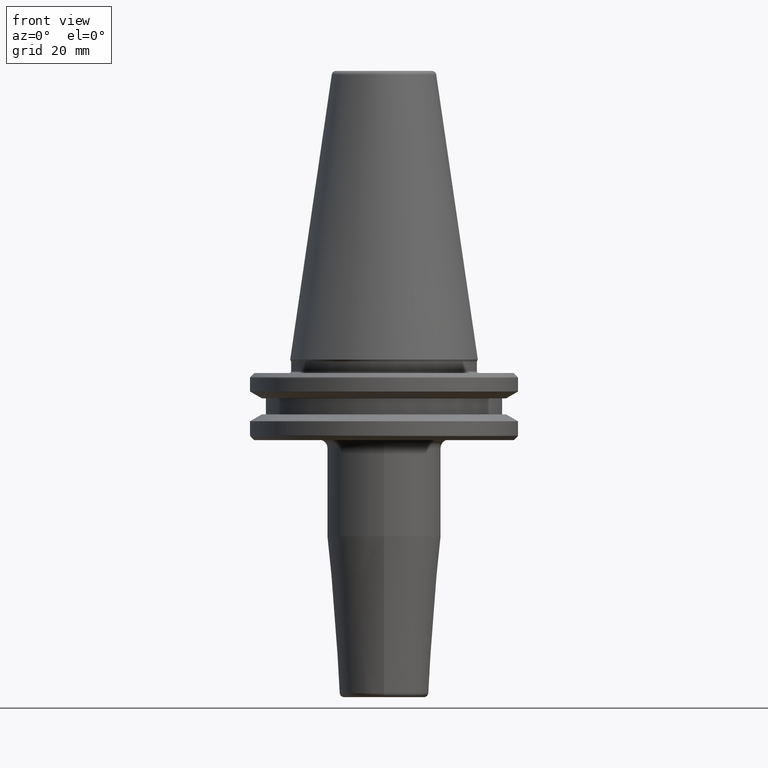
[diagram: clean part render]
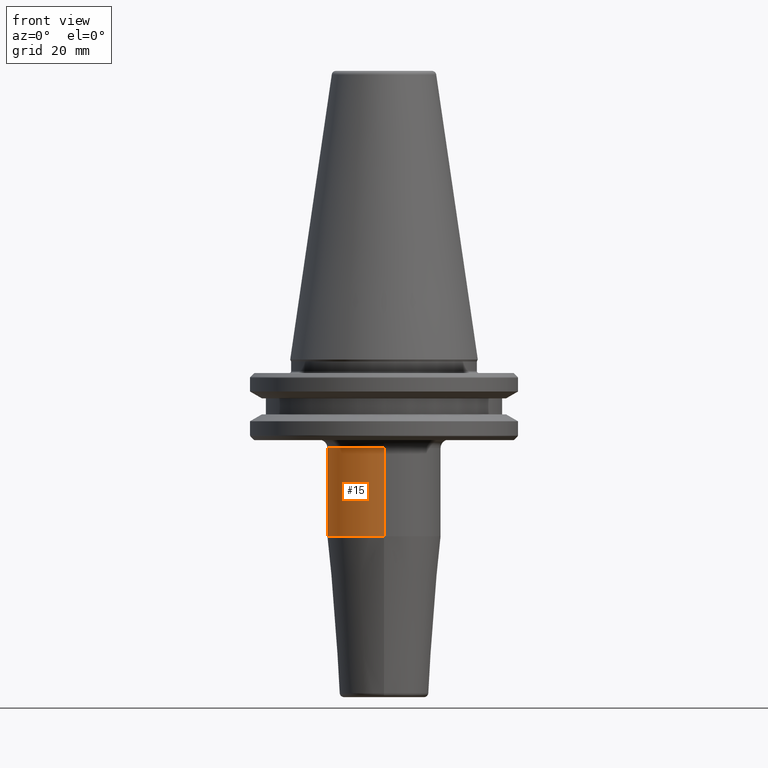
[diagram: same view with one face highlighted and labeled with its STEP entity id]
A machine part, front view. The second image highlights one B-rep face of the part: STEP entity #15.
In plain terms, the highlighted cylindrical surface (partial cylindrical patch) has radius 13.5 mm, axis along (-0, 0, -1).
Its self-contained STEP definition (entity closure, byte-faithful):
#15 = ADVANCED_FACE ( 'NONE', ( #902 ), #128, .T. ) ;
#33 = ORIENTED_EDGE ( 'NONE', *, *, #848, .T. ) ;
#51 = VECTOR ( 'NONE', #255, 1000.000000000000000 ) ;
#79 = DIRECTION ( 'NONE',  ( -0.0000000000000000000, 2.829168385244881300E-016, -1.000000000000000000 ) ) ;
#128 = CYLINDRICAL_SURFACE ( 'NONE', #355, 13.50000000000002700 ) ;
#192 = ORIENTED_EDGE ( 'NONE', *, *, #376, .T. ) ;
#212 = DIRECTION ( 'NONE',  ( 0.0000000000000000000, 1.000000000000000000, 0.0000000000000000000 ) ) ;
#219 = EDGE_CURVE ( 'NONE', #515, #791, #477, .T. ) ;
#255 = DIRECTION ( 'NONE',  ( -0.0000000000000000000, 2.829168385244881300E-016, -1.000000000000000000 ) ) ;
#262 = ORIENTED_EDGE ( 'NONE', *, *, #417, .F. ) ;
#321 = VERTEX_POINT ( 'NONE', #428 ) ;
#355 = AXIS2_PLACEMENT_3D ( 'NONE', #1011, #538, #212 ) ;
#359 = CARTESIAN_POINT ( 'NONE',  ( 0.0000000000000000000, -1.079123761497481700E-014, -41.88138579147598500 ) ) ;
#363 = AXIS2_PLACEMENT_3D ( 'NONE', #372, #1039, #481 ) ;
#370 = DIRECTION ( 'NONE',  ( 0.0000000000000000000, 1.000000000000000000, 5.139921410301638000E-016 ) ) ;
#372 = CARTESIAN_POINT ( 'NONE',  ( 0.0000000000000000000, -1.670378735265370500E-014, -20.98284271247461400 ) ) ;
#376 = EDGE_CURVE ( 'NONE', #321, #791, #853, .T. ) ;
#417 = EDGE_CURVE ( 'NONE', #625, #515, #449, .T. ) ;
#428 = CARTESIAN_POINT ( 'NONE',  ( 0.0000000000000000000, 13.50000000000000000, -20.98284271247461100 ) ) ;
#449 = LINE ( 'NONE', #917, #51 ) ;
#477 = CIRCLE ( 'NONE', #618, 13.50000000000003400 ) ;
#481 = DIRECTION ( 'NONE',  ( 0.0000000000000000000, 1.000000000000000000, 2.569960705150821900E-016 ) ) ;
#515 = VERTEX_POINT ( 'NONE', #993 ) ;
#538 = DIRECTION ( 'NONE',  ( -0.0000000000000000000, 2.829168385244881300E-016, -1.000000000000000000 ) ) ;
#574 = EDGE_LOOP ( 'NONE', ( #262, #33, #192, #642 ) ) ;
#616 = VECTOR ( 'NONE', #720, 1000.000000000000000 ) ;
#618 = AXIS2_PLACEMENT_3D ( 'NONE', #359, #79, #370 ) ;
#625 = VERTEX_POINT ( 'NONE', #738 ) ;
#642 = ORIENTED_EDGE ( 'NONE', *, *, #219, .F. ) ;
#720 = DIRECTION ( 'NONE',  ( -0.0000000000000000000, 2.829168385244881300E-016, -1.000000000000000000 ) ) ;
#727 = CARTESIAN_POINT ( 'NONE',  ( 0.0000000000000000000, 13.50000000000002700, -80.00000000000000000 ) ) ;
#738 = CARTESIAN_POINT ( 'NONE',  ( 1.653273178848929600E-015, -13.50000000000003400, -20.98284271247461800 ) ) ;
#791 = VERTEX_POINT ( 'NONE', #1019 ) ;
#848 = EDGE_CURVE ( 'NONE', #625, #321, #1231, .T. ) ;
#853 = LINE ( 'NONE', #727, #616 ) ;
#902 = FACE_OUTER_BOUND ( 'NONE', #574, .T. ) ;
#917 = CARTESIAN_POINT ( 'NONE',  ( 1.653273178848929800E-015, -13.50000000000002700, -80.00000000000000000 ) ) ;
#993 = CARTESIAN_POINT ( 'NONE',  ( 0.0000000000000000000, -13.50000000000004400, -41.88138579147598500 ) ) ;
#1011 = CARTESIAN_POINT ( 'NONE',  ( 0.0000000000000000000, -6.839794164568140200E-018, -80.00000000000000000 ) ) ;
#1019 = CARTESIAN_POINT ( 'NONE',  ( 1.653273178848931000E-015, 13.50000000000002500, -41.88138579147598500 ) ) ;
#1039 = DIRECTION ( 'NONE',  ( -0.0000000000000000000, 2.829168385244881300E-016, -1.000000000000000000 ) ) ;
#1231 = CIRCLE ( 'NONE', #363, 13.50000000000001800 ) ;